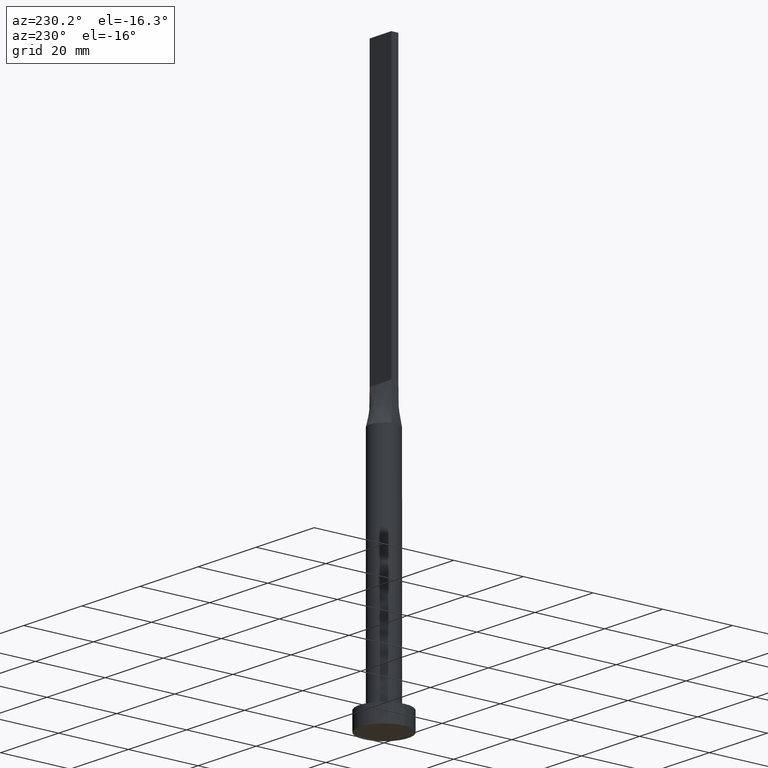
[diagram: clean part render]
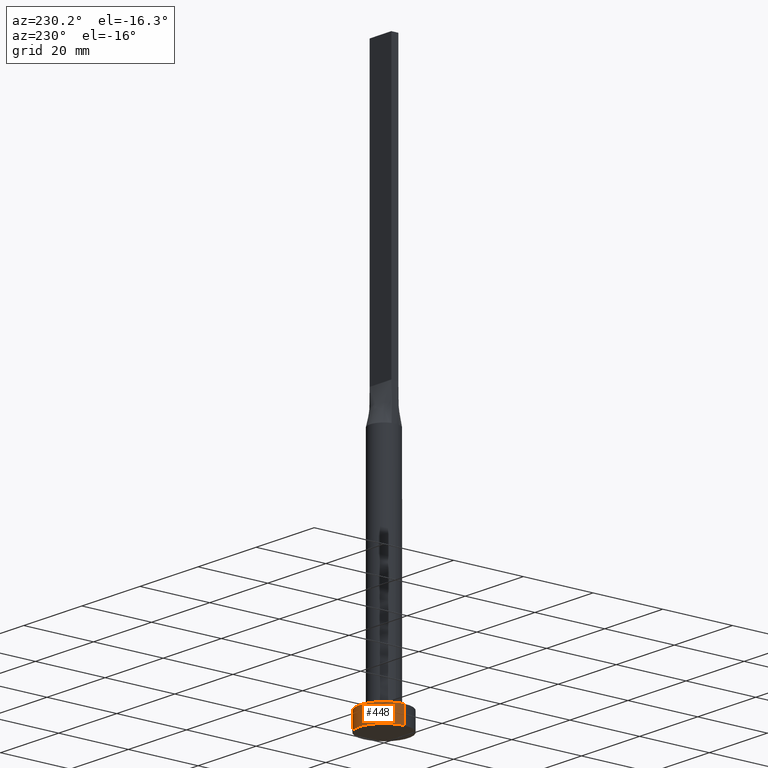
[diagram: same view with one face highlighted and labeled with its STEP entity id]
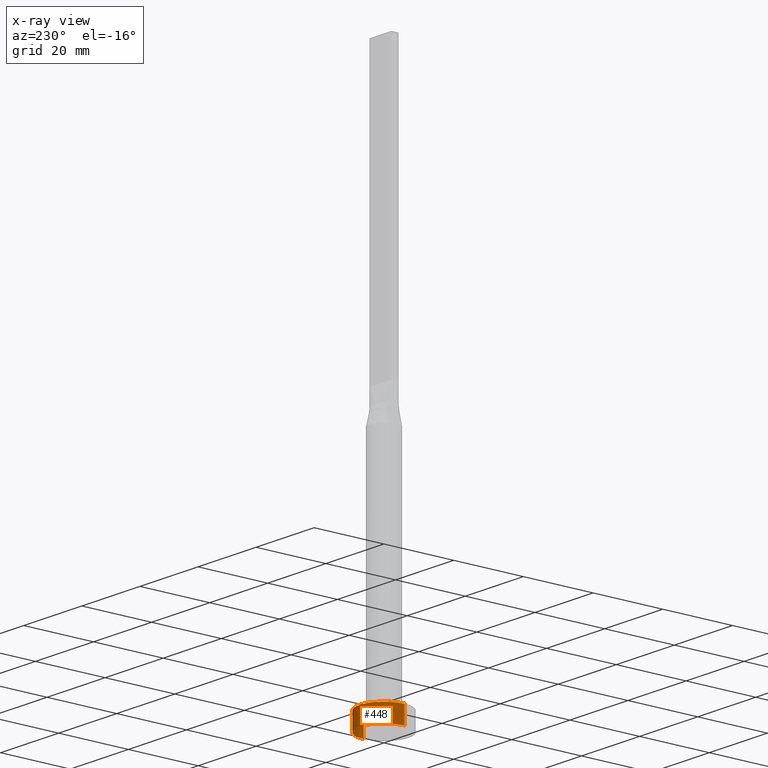
[diagram: x-ray of the same camera — body ghosted, the highlighted face saturated]
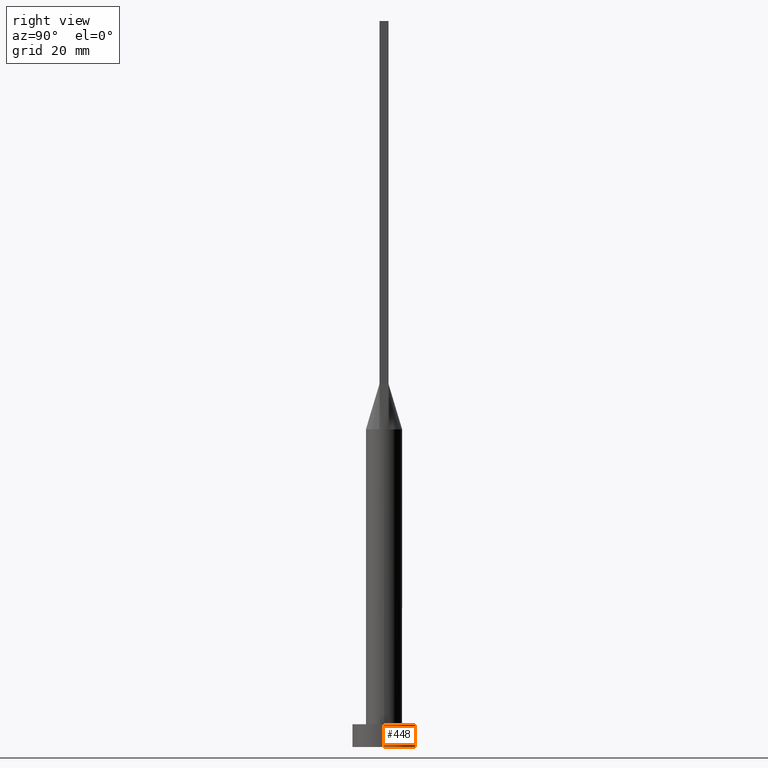
[diagram: same view with one face highlighted and labeled with its STEP entity id]
A machine part, auxiliary view. The second image highlights one B-rep face of the part: STEP entity #448.
The next image is the same camera in x-ray: the body ghosted, the highlighted face saturated — about 0% of this face is hidden behind the body in this view.
A second angle (right view) of the same face is appended — the face is thin or edge-on in the first view.
In plain terms, the highlighted cylindrical surface (edge-blend (fillet) strip) has radius 7 mm, axis along (-0, -0, -1).
Its self-contained STEP definition (entity closure, byte-faithful):
#17 = EDGE_CURVE ( 'NONE', #472, #421, #157, .T. ) ;
#41 = EDGE_CURVE ( 'NONE', #472, #430, #343, .T. ) ;
#46 = AXIS2_PLACEMENT_3D ( 'NONE', #443, #485, #263 ) ;
#97 = VERTEX_POINT ( 'NONE', #487 ) ;
#113 = EDGE_LOOP ( 'NONE', ( #277, #512, #340, #156 ) ) ;
#127 = DIRECTION ( 'NONE',  ( -0.000000000000000000, -0.000000000000000000, -1.000000000000000000 ) ) ;
#131 = CARTESIAN_POINT ( 'NONE',  ( 7.000000000000000000, 8.572527594031473190E-16, 0.000000000000000000 ) ) ;
#156 = ORIENTED_EDGE ( 'NONE', *, *, #347, .F. ) ;
#157 = CIRCLE ( 'NONE', #46, 7.000000000000000000 ) ;
#215 = LINE ( 'NONE', #437, #291 ) ;
#218 = FACE_OUTER_BOUND ( 'NONE', #113, .T. ) ;
#232 = CIRCLE ( 'NONE', #382, 7.000000000000000000 ) ;
#263 = DIRECTION ( 'NONE',  ( 1.000000000000000000, 0.000000000000000000, 0.000000000000000000 ) ) ;
#266 = CARTESIAN_POINT ( 'NONE',  ( 7.000000000000000000, 8.572527594031473190E-16, 5.000000000000000000 ) ) ;
#277 = ORIENTED_EDGE ( 'NONE', *, *, #17, .F. ) ;
#291 = VECTOR ( 'NONE', #442, 1000.000000000000000 ) ;
#293 = AXIS2_PLACEMENT_3D ( 'NONE', #363, #535, #488 ) ;
#340 = ORIENTED_EDGE ( 'NONE', *, *, #395, .T. ) ;
#343 = LINE ( 'NONE', #478, #498 ) ;
#347 = EDGE_CURVE ( 'NONE', #421, #97, #215, .T. ) ;
#355 = CYLINDRICAL_SURFACE ( 'NONE', #293, 7.000000000000000000 ) ;
#363 = CARTESIAN_POINT ( 'NONE',  ( 0.000000000000000000, 0.000000000000000000, 5.000000000000000000 ) ) ;
#382 = AXIS2_PLACEMENT_3D ( 'NONE', #581, #401, #533 ) ;
#395 = EDGE_CURVE ( 'NONE', #430, #97, #232, .T. ) ;
#398 = CARTESIAN_POINT ( 'NONE',  ( -7.000000000000000000, 0.000000000000000000, 5.000000000000000000 ) ) ;
#401 = DIRECTION ( 'NONE',  ( 0.000000000000000000, 0.000000000000000000, 1.000000000000000000 ) ) ;
#421 = VERTEX_POINT ( 'NONE', #398 ) ;
#430 = VERTEX_POINT ( 'NONE', #131 ) ;
#437 = CARTESIAN_POINT ( 'NONE',  ( -7.000000000000000000, 0.000000000000000000, 5.000000000000000000 ) ) ;
#442 = DIRECTION ( 'NONE',  ( -0.000000000000000000, -0.000000000000000000, -1.000000000000000000 ) ) ;
#443 = CARTESIAN_POINT ( 'NONE',  ( 0.000000000000000000, 0.000000000000000000, 5.000000000000000000 ) ) ;
#448 = ADVANCED_FACE ( 'NONE', ( #218 ), #355, .T. ) ;
#472 = VERTEX_POINT ( 'NONE', #266 ) ;
#478 = CARTESIAN_POINT ( 'NONE',  ( 7.000000000000000000, 8.572527594031473190E-16, 5.000000000000000000 ) ) ;
#485 = DIRECTION ( 'NONE',  ( 0.000000000000000000, 0.000000000000000000, 1.000000000000000000 ) ) ;
#487 = CARTESIAN_POINT ( 'NONE',  ( -7.000000000000000000, 0.000000000000000000, 0.000000000000000000 ) ) ;
#488 = DIRECTION ( 'NONE',  ( -1.000000000000000000, 0.000000000000000000, 0.000000000000000000 ) ) ;
#498 = VECTOR ( 'NONE', #127, 1000.000000000000000 ) ;
#512 = ORIENTED_EDGE ( 'NONE', *, *, #41, .T. ) ;
#533 = DIRECTION ( 'NONE',  ( 1.000000000000000000, 0.000000000000000000, 0.000000000000000000 ) ) ;
#535 = DIRECTION ( 'NONE',  ( -0.000000000000000000, -0.000000000000000000, -1.000000000000000000 ) ) ;
#581 = CARTESIAN_POINT ( 'NONE',  ( 0.000000000000000000, 0.000000000000000000, 0.000000000000000000 ) ) ;